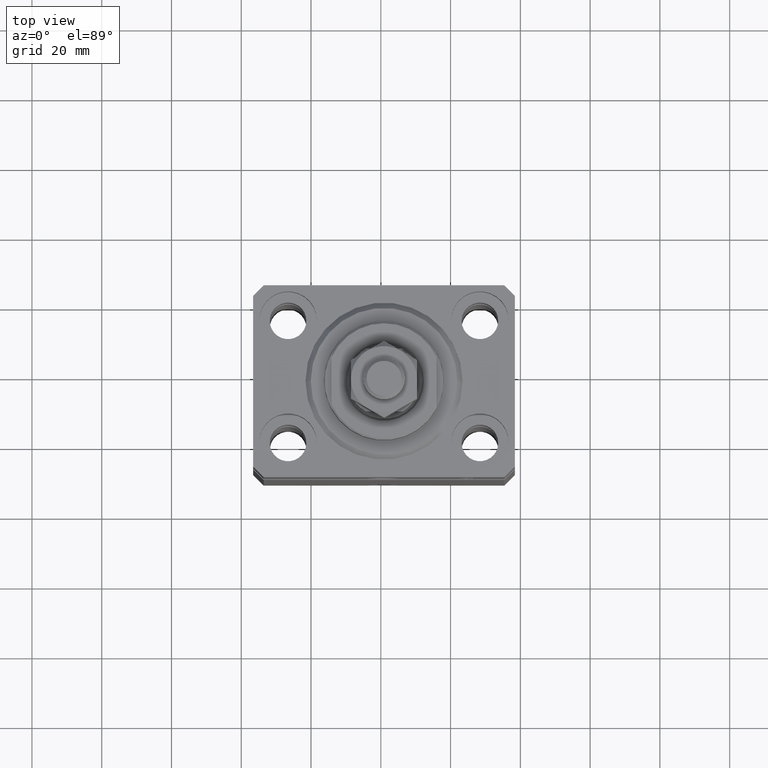
[diagram: clean part render]
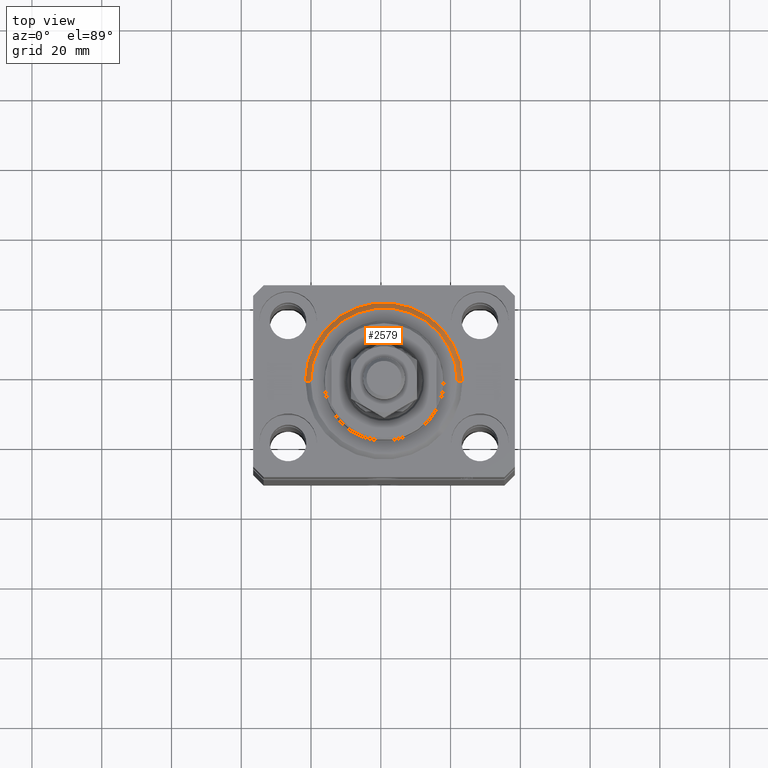
[diagram: same view with one face highlighted and labeled with its STEP entity id]
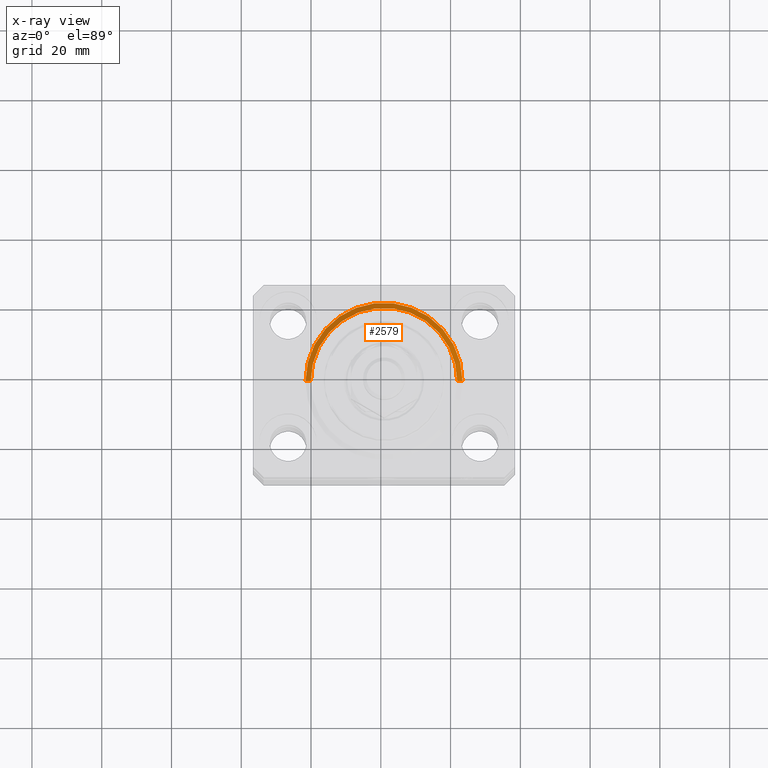
[diagram: x-ray of the same camera — body ghosted, the highlighted face saturated]
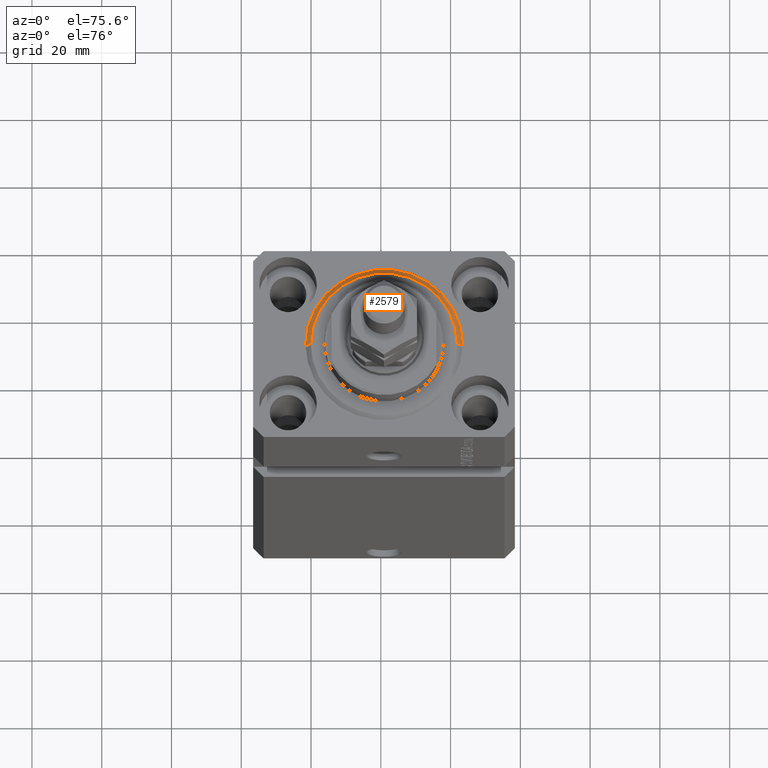
[diagram: same view with one face highlighted and labeled with its STEP entity id]
A machine part, top view. The second image highlights one B-rep face of the part: STEP entity #2579.
The next image is the same camera in x-ray: the body ghosted, the highlighted face saturated — about 0% of this face is hidden behind the body in this view.
A second angle (auxiliary view) of the same face is appended — the face is thin or edge-on in the first view.
In plain terms, the highlighted conical surface has half-angle 45 deg.
Its self-contained STEP definition (entity closure, byte-faithful):
#1252 = EDGE_CURVE ( 'NONE', #27278, #23727, #43775, .T. ) ;
#2579 = ADVANCED_FACE ( 'NONE', ( #24338 ), #31343, .T. ) ;
#5965 = EDGE_LOOP ( 'NONE', ( #12702, #26616, #44078, #16149 ) ) ;
#6015 = DIRECTION ( 'NONE',  ( -0.000000000000000000, -0.000000000000000000, 1.000000000000000000 ) ) ;
#6254 = CARTESIAN_POINT ( 'NONE',  ( 22.50000000000000355, 0.000000000000000000, 1.500000000000039524 ) ) ;
#7828 = CIRCLE ( 'NONE', #42431, 22.50000000000000355 ) ;
#9935 = CARTESIAN_POINT ( 'NONE',  ( 20.99999999999995381, 0.000000000000000000, 0.000000000000000000 ) ) ;
#11182 = DIRECTION ( 'NONE',  ( 1.000000000000000000, 0.000000000000000000, 0.000000000000000000 ) ) ;
#12702 = ORIENTED_EDGE ( 'NONE', *, *, #1252, .F. ) ;
#14830 = LINE ( 'NONE', #25434, #27932 ) ;
#16149 = ORIENTED_EDGE ( 'NONE', *, *, #20284, .F. ) ;
#16201 = LINE ( 'NONE', #6254, #39655 ) ;
#16649 = DIRECTION ( 'NONE',  ( 1.000000000000000000, 0.000000000000000000, 0.000000000000000000 ) ) ;
#16824 = DIRECTION ( 'NONE',  ( -0.000000000000000000, -0.000000000000000000, -1.000000000000000000 ) ) ;
#20284 = EDGE_CURVE ( 'NONE', #23727, #43207, #16201, .T. ) ;
#21697 = AXIS2_PLACEMENT_3D ( 'NONE', #34352, #16824, #30898 ) ;
#23727 = VERTEX_POINT ( 'NONE', #9935 ) ;
#24338 = FACE_OUTER_BOUND ( 'NONE', #5965, .T. ) ;
#25434 = CARTESIAN_POINT ( 'NONE',  ( -22.50000000000000355, 2.755455298081545172E-15, 1.500000000000039524 ) ) ;
#26616 = ORIENTED_EDGE ( 'NONE', *, *, #26789, .T. ) ;
#26789 = EDGE_CURVE ( 'NONE', #27278, #33875, #14830, .T. ) ;
#27278 = VERTEX_POINT ( 'NONE', #38647 ) ;
#27932 = VECTOR ( 'NONE', #39504, 1000.000000000000114 ) ;
#30898 = DIRECTION ( 'NONE',  ( 1.000000000000000000, 0.000000000000000000, 0.000000000000000000 ) ) ;
#31343 = CONICAL_SURFACE ( 'NONE', #43135, 22.50000000000000355, 0.7853981633974517207 ) ;
#33719 = DIRECTION ( 'NONE',  ( 0.7071067811865500152, 0.000000000000000000, 0.7071067811865451302 ) ) ;
#33875 = VERTEX_POINT ( 'NONE', #38447 ) ;
#34352 = CARTESIAN_POINT ( 'NONE',  ( 0.000000000000000000, 0.000000000000000000, 0.000000000000000000 ) ) ;
#37620 = CARTESIAN_POINT ( 'NONE',  ( 0.000000000000000000, 0.000000000000000000, 1.500000000000039524 ) ) ;
#38447 = CARTESIAN_POINT ( 'NONE',  ( -22.50000000000000355, 0.000000000000000000, 1.500000000000039524 ) ) ;
#38647 = CARTESIAN_POINT ( 'NONE',  ( -20.99999999999995381, 2.663606788145490261E-15, 0.000000000000000000 ) ) ;
#39504 = DIRECTION ( 'NONE',  ( -0.7071067811865500152, 8.659560562354962440E-17, 0.7071067811865451302 ) ) ;
#39655 = VECTOR ( 'NONE', #33719, 1000.000000000000114 ) ;
#39981 = DIRECTION ( 'NONE',  ( -0.000000000000000000, -0.000000000000000000, 1.000000000000000000 ) ) ;
#40113 = CARTESIAN_POINT ( 'NONE',  ( 22.50000000000000355, 2.755455298081544383E-15, 1.500000000000039524 ) ) ;
#42431 = AXIS2_PLACEMENT_3D ( 'NONE', #37620, #6015, #16649 ) ;
#43135 = AXIS2_PLACEMENT_3D ( 'NONE', #45554, #39981, #11182 ) ;
#43207 = VERTEX_POINT ( 'NONE', #40113 ) ;
#43775 = CIRCLE ( 'NONE', #21697, 20.99999999999995381 ) ;
#43896 = EDGE_CURVE ( 'NONE', #43207, #33875, #7828, .T. ) ;
#44078 = ORIENTED_EDGE ( 'NONE', *, *, #43896, .F. ) ;
#45554 = CARTESIAN_POINT ( 'NONE',  ( 0.000000000000000000, 0.000000000000000000, 1.500000000000039524 ) ) ;